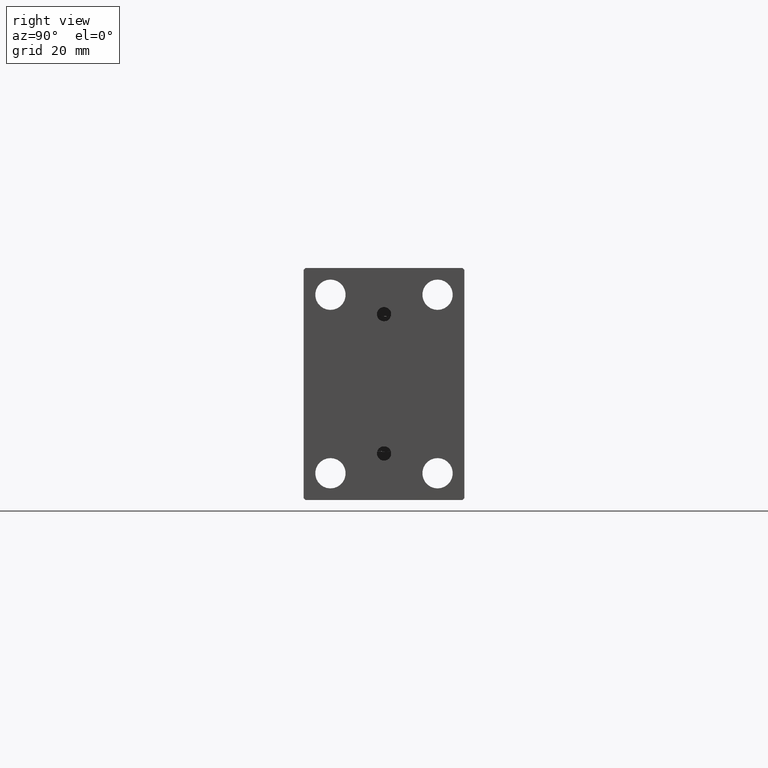
[diagram: clean part render]
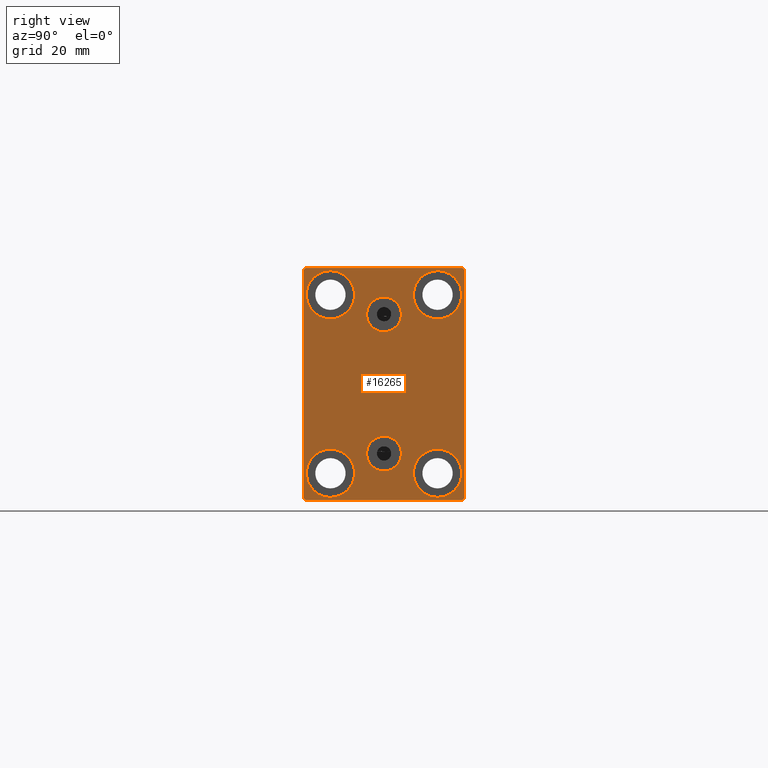
[diagram: same view with one face highlighted and labeled with its STEP entity id]
A machine part, right view. The second image highlights one B-rep face of the part: STEP entity #16265.
In plain terms, the highlighted planar face has unit normal (1, 0, 0).
Its self-contained STEP definition (entity closure, byte-faithful):
#203 = DIRECTION ( 'NONE',  ( -1.000000000000000000, -0.000000000000000000, -0.000000000000000000 ) ) ;
#369 = CARTESIAN_POINT ( 'NONE',  ( 150.0000000000000000, 14.99999999999999645, -25.00000000000000000 ) ) ;
#379 = CIRCLE ( 'NONE', #12104, 6.749999999999999112 ) ;
#408 = CARTESIAN_POINT ( 'NONE',  ( 150.0000000000000000, -2.976515330312223406E-15, 24.36000000000000298 ) ) ;
#1084 = EDGE_LOOP ( 'NONE', ( #27696, #11768 ) ) ;
#1200 = DIRECTION ( 'NONE',  ( -1.000000000000000000, -0.000000000000000000, -0.000000000000000000 ) ) ;
#1370 = DIRECTION ( 'NONE',  ( 1.000000000000000000, 0.000000000000000000, -0.000000000000000000 ) ) ;
#1703 = CARTESIAN_POINT ( 'NONE',  ( 150.0000000000000000, -3.571693674697836683E-15, 14.64000000000000412 ) ) ;
#1737 = EDGE_CURVE ( 'NONE', #19269, #39121, #16341, .T. ) ;
#2120 = AXIS2_PLACEMENT_3D ( 'NONE', #43039, #1200, #17986 ) ;
#2207 = EDGE_CURVE ( 'NONE', #7756, #29738, #33596, .T. ) ;
#2974 = ORIENTED_EDGE ( 'NONE', *, *, #1737, .T. ) ;
#3072 = DIRECTION ( 'NONE',  ( 0.000000000000000000, 0.000000000000000000, 1.000000000000000000 ) ) ;
#3288 = VERTEX_POINT ( 'NONE', #33958 ) ;
#3329 = EDGE_LOOP ( 'NONE', ( #15543, #34946 ) ) ;
#3393 = ORIENTED_EDGE ( 'NONE', *, *, #29836, .T. ) ;
#3717 = CARTESIAN_POINT ( 'NONE',  ( 150.0000000000000000, 22.50000000000000000, -32.50000000000000711 ) ) ;
#3911 = DIRECTION ( 'NONE',  ( 1.000000000000000000, 0.000000000000000000, 0.000000000000000000 ) ) ;
#4353 = AXIS2_PLACEMENT_3D ( 'NONE', #11333, #26262, #22361 ) ;
#4820 = CARTESIAN_POINT ( 'NONE',  ( 150.0000000000000000, 14.99999999999999645, -18.25000000000000355 ) ) ;
#5577 = LINE ( 'NONE', #44639, #41724 ) ;
#5673 = LINE ( 'NONE', #20365, #40657 ) ;
#5787 = CARTESIAN_POINT ( 'NONE',  ( 150.0000000000000000, 27.24999999999985079, 27.25000000000023093 ) ) ;
#5873 = FACE_BOUND ( 'NONE', #28547, .T. ) ;
#6862 = CIRCLE ( 'NONE', #38427, 6.749999999999999112 ) ;
#6935 = DIRECTION ( 'NONE',  ( 1.000000000000000000, 0.000000000000000000, 0.000000000000000000 ) ) ;
#7293 = DIRECTION ( 'NONE',  ( 0.000000000000000000, -0.7071067811865474617, -0.7071067811865474617 ) ) ;
#7756 = VERTEX_POINT ( 'NONE', #19404 ) ;
#8243 = CARTESIAN_POINT ( 'NONE',  ( 150.0000000000000000, 15.00000000000000355, 18.25000000000000355 ) ) ;
#8255 = EDGE_CURVE ( 'NONE', #21776, #3288, #5577, .T. ) ;
#8839 = VECTOR ( 'NONE', #7293, 1000.000000000000114 ) ;
#9030 = AXIS2_PLACEMENT_3D ( 'NONE', #43436, #1370, #18598 ) ;
#9961 = CARTESIAN_POINT ( 'NONE',  ( 150.0000000000000000, -14.99999999999999645, 25.00000000000000000 ) ) ;
#10758 = DIRECTION ( 'NONE',  ( 0.000000000000000000, 0.000000000000000000, 1.000000000000000000 ) ) ;
#11197 = AXIS2_PLACEMENT_3D ( 'NONE', #31047, #3911, #24375 ) ;
#11236 = CIRCLE ( 'NONE', #9030, 4.859999999999999432 ) ;
#11333 = CARTESIAN_POINT ( 'NONE',  ( 150.0000000000000000, -3.571693674697836683E-15, 19.50000000000000355 ) ) ;
#11768 = ORIENTED_EDGE ( 'NONE', *, *, #30221, .T. ) ;
#12104 = AXIS2_PLACEMENT_3D ( 'NONE', #22241, #33047, #25924 ) ;
#12234 = DIRECTION ( 'NONE',  ( -0.000000000000000000, 0.7071067811865474617, 0.7071067811865474617 ) ) ;
#12682 = CARTESIAN_POINT ( 'NONE',  ( 150.0000000000000000, -27.25000000000030553, -27.24999999999954881 ) ) ;
#12774 = CIRCLE ( 'NONE', #25278, 6.749999999999999112 ) ;
#13049 = EDGE_CURVE ( 'NONE', #40744, #20347, #38827, .T. ) ;
#13240 = AXIS2_PLACEMENT_3D ( 'NONE', #37353, #6935, #17261 ) ;
#13244 = DIRECTION ( 'NONE',  ( 0.000000000000000000, -1.000000000000000000, -1.541976423090495387E-16 ) ) ;
#14921 = CARTESIAN_POINT ( 'NONE',  ( 150.0000000000000000, -15.00000000000000355, -31.75000000000000000 ) ) ;
#15410 = CARTESIAN_POINT ( 'NONE',  ( 150.0000000000000000, -21.99999999999999289, 32.49999999999999289 ) ) ;
#15543 = ORIENTED_EDGE ( 'NONE', *, *, #33028, .T. ) ;
#15772 = AXIS2_PLACEMENT_3D ( 'NONE', #33560, #33107, #22757 ) ;
#15872 = CARTESIAN_POINT ( 'NONE',  ( 150.0000000000000000, -22.50000000000000711, 32.49999999999999289 ) ) ;
#16123 = DIRECTION ( 'NONE',  ( -0.000000000000000000, 0.7071067811865376918, -0.7071067811865574537 ) ) ;
#16162 = ORIENTED_EDGE ( 'NONE', *, *, #22813, .F. ) ;
#16265 = ADVANCED_FACE ( 'NONE', ( #20720, #5873, #24401, #27856, #44257, #38415, #19646 ), #34750, .T. ) ;
#16341 = LINE ( 'NONE', #15872, #44529 ) ;
#16481 = AXIS2_PLACEMENT_3D ( 'NONE', #9961, #23776, #3072 ) ;
#16740 = DIRECTION ( 'NONE',  ( -1.000000000000000000, -0.000000000000000000, -0.000000000000000000 ) ) ;
#17261 = DIRECTION ( 'NONE',  ( 0.000000000000000000, 0.000000000000000000, -1.000000000000000000 ) ) ;
#17872 = VERTEX_POINT ( 'NONE', #38993 ) ;
#17986 = DIRECTION ( 'NONE',  ( 0.000000000000000000, 0.000000000000000000, 1.000000000000000000 ) ) ;
#18174 = CARTESIAN_POINT ( 'NONE',  ( 150.0000000000000000, 15.00000000000000355, 31.75000000000000000 ) ) ;
#18175 = DIRECTION ( 'NONE',  ( 0.000000000000000000, -1.067522139062650425E-16, 1.000000000000000000 ) ) ;
#18304 = LINE ( 'NONE', #32334, #40938 ) ;
#18551 = DIRECTION ( 'NONE',  ( 0.000000000000000000, 0.000000000000000000, 1.000000000000000000 ) ) ;
#18598 = DIRECTION ( 'NONE',  ( 0.000000000000000000, 0.000000000000000000, 1.000000000000000000 ) ) ;
#18675 = ORIENTED_EDGE ( 'NONE', *, *, #2207, .T. ) ;
#19163 = ORIENTED_EDGE ( 'NONE', *, *, #32255, .T. ) ;
#19239 = CARTESIAN_POINT ( 'NONE',  ( 150.0000000000000000, 14.99999999999999645, -31.75000000000000000 ) ) ;
#19269 = VERTEX_POINT ( 'NONE', #42799 ) ;
#19404 = CARTESIAN_POINT ( 'NONE',  ( 150.0000000000000000, 22.49999999999999289, 32.00000000000002132 ) ) ;
#19552 = DIRECTION ( 'NONE',  ( 0.000000000000000000, 0.000000000000000000, -1.000000000000000000 ) ) ;
#19646 = FACE_OUTER_BOUND ( 'NONE', #30459, .T. ) ;
#20061 = ORIENTED_EDGE ( 'NONE', *, *, #36756, .T. ) ;
#20347 = VERTEX_POINT ( 'NONE', #8243 ) ;
#20365 = CARTESIAN_POINT ( 'NONE',  ( 150.0000000000000000, 22.49999999999999289, 32.50000000000000000 ) ) ;
#20675 = ORIENTED_EDGE ( 'NONE', *, *, #33076, .T. ) ;
#20720 = FACE_BOUND ( 'NONE', #41943, .T. ) ;
#21082 = LINE ( 'NONE', #38552, #8839 ) ;
#21776 = VERTEX_POINT ( 'NONE', #24007 ) ;
#21986 = DIRECTION ( 'NONE',  ( 0.000000000000000000, 1.000000000000000000, 0.000000000000000000 ) ) ;
#22241 = CARTESIAN_POINT ( 'NONE',  ( 150.0000000000000000, -14.99999999999999645, 25.00000000000000000 ) ) ;
#22276 = ORIENTED_EDGE ( 'NONE', *, *, #8255, .T. ) ;
#22348 = CARTESIAN_POINT ( 'NONE',  ( 150.0000000000000000, 22.00000000000000711, 32.50000000000000000 ) ) ;
#22361 = DIRECTION ( 'NONE',  ( 0.000000000000000000, 0.000000000000000000, -1.000000000000000000 ) ) ;
#22487 = VERTEX_POINT ( 'NONE', #39437 ) ;
#22757 = DIRECTION ( 'NONE',  ( 0.000000000000000000, 0.000000000000000000, 1.000000000000000000 ) ) ;
#22813 = EDGE_CURVE ( 'NONE', #42564, #37102, #28071, .T. ) ;
#23173 = VERTEX_POINT ( 'NONE', #14921 ) ;
#23177 = EDGE_CURVE ( 'NONE', #37030, #31074, #11236, .T. ) ;
#23776 = DIRECTION ( 'NONE',  ( -1.000000000000000000, -0.000000000000000000, -0.000000000000000000 ) ) ;
#23781 = CIRCLE ( 'NONE', #28168, 4.859999999999999432 ) ;
#23895 = ORIENTED_EDGE ( 'NONE', *, *, #23177, .F. ) ;
#24007 = CARTESIAN_POINT ( 'NONE',  ( 150.0000000000000000, 21.99999999999998579, -32.50000000000000711 ) ) ;
#24046 = DIRECTION ( 'NONE',  ( 0.000000000000000000, 0.000000000000000000, 1.000000000000000000 ) ) ;
#24205 = EDGE_LOOP ( 'NONE', ( #20675, #19163 ) ) ;
#24317 = VERTEX_POINT ( 'NONE', #19239 ) ;
#24318 = ORIENTED_EDGE ( 'NONE', *, *, #33703, .T. ) ;
#24375 = DIRECTION ( 'NONE',  ( 0.000000000000000000, 0.000000000000000000, -1.000000000000000000 ) ) ;
#24401 = FACE_BOUND ( 'NONE', #38382, .T. ) ;
#24607 = ORIENTED_EDGE ( 'NONE', *, *, #29396, .T. ) ;
#24611 = CIRCLE ( 'NONE', #15772, 6.749999999999999112 ) ;
#25206 = EDGE_CURVE ( 'NONE', #3288, #7756, #35208, .T. ) ;
#25278 = AXIS2_PLACEMENT_3D ( 'NONE', #33647, #43319, #25854 ) ;
#25337 = AXIS2_PLACEMENT_3D ( 'NONE', #38573, #203, #10758 ) ;
#25854 = DIRECTION ( 'NONE',  ( 0.000000000000000000, 0.000000000000000000, 1.000000000000000000 ) ) ;
#25924 = DIRECTION ( 'NONE',  ( 0.000000000000000000, 0.000000000000000000, 1.000000000000000000 ) ) ;
#26262 = DIRECTION ( 'NONE',  ( 1.000000000000000000, 0.000000000000000000, 0.000000000000000000 ) ) ;
#26683 = ORIENTED_EDGE ( 'NONE', *, *, #39415, .F. ) ;
#27338 = CARTESIAN_POINT ( 'NONE',  ( 150.0000000000000000, -15.00000000000000355, -25.00000000000000000 ) ) ;
#27696 = ORIENTED_EDGE ( 'NONE', *, *, #31160, .T. ) ;
#27856 = FACE_BOUND ( 'NONE', #24205, .T. ) ;
#28071 = CIRCLE ( 'NONE', #11197, 4.859999999999999432 ) ;
#28168 = AXIS2_PLACEMENT_3D ( 'NONE', #28910, #42937, #18551 ) ;
#28266 = CIRCLE ( 'NONE', #25337, 6.749999999999999112 ) ;
#28405 = EDGE_CURVE ( 'NONE', #24317, #29996, #40635, .T. ) ;
#28547 = EDGE_LOOP ( 'NONE', ( #37540, #23895 ) ) ;
#28627 = DIRECTION ( 'NONE',  ( -1.000000000000000000, -0.000000000000000000, -0.000000000000000000 ) ) ;
#28910 = CARTESIAN_POINT ( 'NONE',  ( 150.0000000000000000, 2.388061258337338150E-15, -19.49999999999999645 ) ) ;
#29292 = CARTESIAN_POINT ( 'NONE',  ( 150.0000000000000000, 2.388061258337338150E-15, -24.35999999999999588 ) ) ;
#29396 = EDGE_CURVE ( 'NONE', #29738, #41646, #5673, .T. ) ;
#29738 = VERTEX_POINT ( 'NONE', #22348 ) ;
#29836 = EDGE_CURVE ( 'NONE', #39121, #17872, #36820, .T. ) ;
#29996 = VERTEX_POINT ( 'NONE', #4820 ) ;
#30221 = EDGE_CURVE ( 'NONE', #22487, #23173, #6862, .T. ) ;
#30251 = ORIENTED_EDGE ( 'NONE', *, *, #28405, .T. ) ;
#30379 = EDGE_CURVE ( 'NONE', #31074, #37030, #23781, .T. ) ;
#30459 = EDGE_LOOP ( 'NONE', ( #24607, #38663, #2974, #3393, #20061, #22276, #34871, #18675 ) ) ;
#30771 = DIRECTION ( 'NONE',  ( 0.000000000000000000, 0.000000000000000000, 1.000000000000000000 ) ) ;
#31047 = CARTESIAN_POINT ( 'NONE',  ( 150.0000000000000000, -3.571693674697836683E-15, 19.50000000000000355 ) ) ;
#31074 = VERTEX_POINT ( 'NONE', #29292 ) ;
#31160 = EDGE_CURVE ( 'NONE', #23173, #22487, #12774, .T. ) ;
#32058 = CARTESIAN_POINT ( 'NONE',  ( 150.0000000000000000, -14.99999999999999645, 31.75000000000000000 ) ) ;
#32255 = EDGE_CURVE ( 'NONE', #42923, #42290, #38523, .T. ) ;
#32334 = CARTESIAN_POINT ( 'NONE',  ( 150.0000000000000000, -22.50000000000000711, -32.50000000000000711 ) ) ;
#33028 = EDGE_CURVE ( 'NONE', #20347, #40744, #28266, .T. ) ;
#33047 = DIRECTION ( 'NONE',  ( -1.000000000000000000, -0.000000000000000000, -0.000000000000000000 ) ) ;
#33076 = EDGE_CURVE ( 'NONE', #42290, #42923, #379, .T. ) ;
#33107 = DIRECTION ( 'NONE',  ( -1.000000000000000000, -0.000000000000000000, -0.000000000000000000 ) ) ;
#33560 = CARTESIAN_POINT ( 'NONE',  ( 150.0000000000000000, 14.99999999999999645, -25.00000000000000000 ) ) ;
#33596 = LINE ( 'NONE', #5787, #37929 ) ;
#33647 = CARTESIAN_POINT ( 'NONE',  ( 150.0000000000000000, -15.00000000000000355, -25.00000000000000000 ) ) ;
#33703 = EDGE_CURVE ( 'NONE', #29996, #24317, #24611, .T. ) ;
#33958 = CARTESIAN_POINT ( 'NONE',  ( 150.0000000000000000, 22.50000000000000000, -32.00000000000000711 ) ) ;
#34014 = VECTOR ( 'NONE', #18175, 1000.000000000000000 ) ;
#34750 = PLANE ( 'NONE',  #13240 ) ;
#34871 = ORIENTED_EDGE ( 'NONE', *, *, #25206, .T. ) ;
#34946 = ORIENTED_EDGE ( 'NONE', *, *, #13049, .T. ) ;
#35208 = LINE ( 'NONE', #3717, #34014 ) ;
#36756 = EDGE_CURVE ( 'NONE', #17872, #21776, #18304, .T. ) ;
#36820 = LINE ( 'NONE', #12682, #45053 ) ;
#37030 = VERTEX_POINT ( 'NONE', #38957 ) ;
#37102 = VERTEX_POINT ( 'NONE', #1703 ) ;
#37353 = CARTESIAN_POINT ( 'NONE',  ( 150.0000000000000000, 0.000000000000000000, 0.000000000000000000 ) ) ;
#37540 = ORIENTED_EDGE ( 'NONE', *, *, #30379, .F. ) ;
#37929 = VECTOR ( 'NONE', #44397, 999.9999999999998863 ) ;
#38382 = EDGE_LOOP ( 'NONE', ( #30251, #24318 ) ) ;
#38415 = FACE_BOUND ( 'NONE', #1084, .T. ) ;
#38427 = AXIS2_PLACEMENT_3D ( 'NONE', #27338, #16740, #30771 ) ;
#38523 = CIRCLE ( 'NONE', #16481, 6.749999999999999112 ) ;
#38552 = CARTESIAN_POINT ( 'NONE',  ( 150.0000000000000000, -27.25000000000000000, 27.25000000000000000 ) ) ;
#38573 = CARTESIAN_POINT ( 'NONE',  ( 150.0000000000000000, 15.00000000000000355, 25.00000000000000000 ) ) ;
#38663 = ORIENTED_EDGE ( 'NONE', *, *, #42593, .T. ) ;
#38827 = CIRCLE ( 'NONE', #2120, 6.749999999999999112 ) ;
#38957 = CARTESIAN_POINT ( 'NONE',  ( 150.0000000000000000, 2.983239602722951428E-15, -14.63999999999999702 ) ) ;
#38993 = CARTESIAN_POINT ( 'NONE',  ( 150.0000000000000000, -21.99999999999999289, -32.50000000000000711 ) ) ;
#39121 = VERTEX_POINT ( 'NONE', #44862 ) ;
#39415 = EDGE_CURVE ( 'NONE', #37102, #42564, #44714, .T. ) ;
#39437 = CARTESIAN_POINT ( 'NONE',  ( 150.0000000000000000, -15.00000000000000355, -18.25000000000000355 ) ) ;
#40635 = CIRCLE ( 'NONE', #41357, 6.749999999999999112 ) ;
#40657 = VECTOR ( 'NONE', #13244, 1000.000000000000000 ) ;
#40744 = VERTEX_POINT ( 'NONE', #18174 ) ;
#40938 = VECTOR ( 'NONE', #21986, 1000.000000000000000 ) ;
#41357 = AXIS2_PLACEMENT_3D ( 'NONE', #369, #28627, #24046 ) ;
#41646 = VERTEX_POINT ( 'NONE', #15410 ) ;
#41724 = VECTOR ( 'NONE', #12234, 1000.000000000000114 ) ;
#41943 = EDGE_LOOP ( 'NONE', ( #26683, #16162 ) ) ;
#42290 = VERTEX_POINT ( 'NONE', #42912 ) ;
#42564 = VERTEX_POINT ( 'NONE', #408 ) ;
#42593 = EDGE_CURVE ( 'NONE', #41646, #19269, #21082, .T. ) ;
#42799 = CARTESIAN_POINT ( 'NONE',  ( 150.0000000000000000, -22.50000000000000711, 31.99999999999999289 ) ) ;
#42912 = CARTESIAN_POINT ( 'NONE',  ( 150.0000000000000000, -14.99999999999999645, 18.25000000000000355 ) ) ;
#42923 = VERTEX_POINT ( 'NONE', #32058 ) ;
#42937 = DIRECTION ( 'NONE',  ( 1.000000000000000000, 0.000000000000000000, -0.000000000000000000 ) ) ;
#43039 = CARTESIAN_POINT ( 'NONE',  ( 150.0000000000000000, 15.00000000000000355, 25.00000000000000000 ) ) ;
#43319 = DIRECTION ( 'NONE',  ( -1.000000000000000000, -0.000000000000000000, -0.000000000000000000 ) ) ;
#43436 = CARTESIAN_POINT ( 'NONE',  ( 150.0000000000000000, 2.388061258337338150E-15, -19.49999999999999645 ) ) ;
#44257 = FACE_BOUND ( 'NONE', #3329, .T. ) ;
#44397 = DIRECTION ( 'NONE',  ( -0.000000000000000000, -0.7071067811865525687, 0.7071067811865425767 ) ) ;
#44529 = VECTOR ( 'NONE', #19552, 1000.000000000000000 ) ;
#44639 = CARTESIAN_POINT ( 'NONE',  ( 150.0000000000000000, 27.25000000000000355, -27.25000000000000355 ) ) ;
#44714 = CIRCLE ( 'NONE', #4353, 4.859999999999999432 ) ;
#44862 = CARTESIAN_POINT ( 'NONE',  ( 150.0000000000000000, -22.50000000000000711, -31.99999999999997868 ) ) ;
#45053 = VECTOR ( 'NONE', #16123, 999.9999999999998863 ) ;